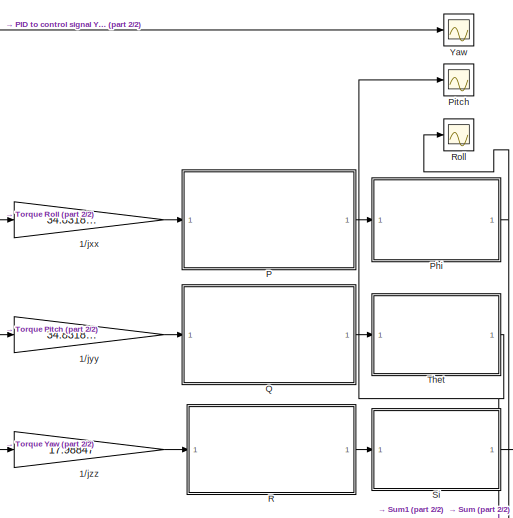
[diagram: root canvas - part 1/2, middle right region]
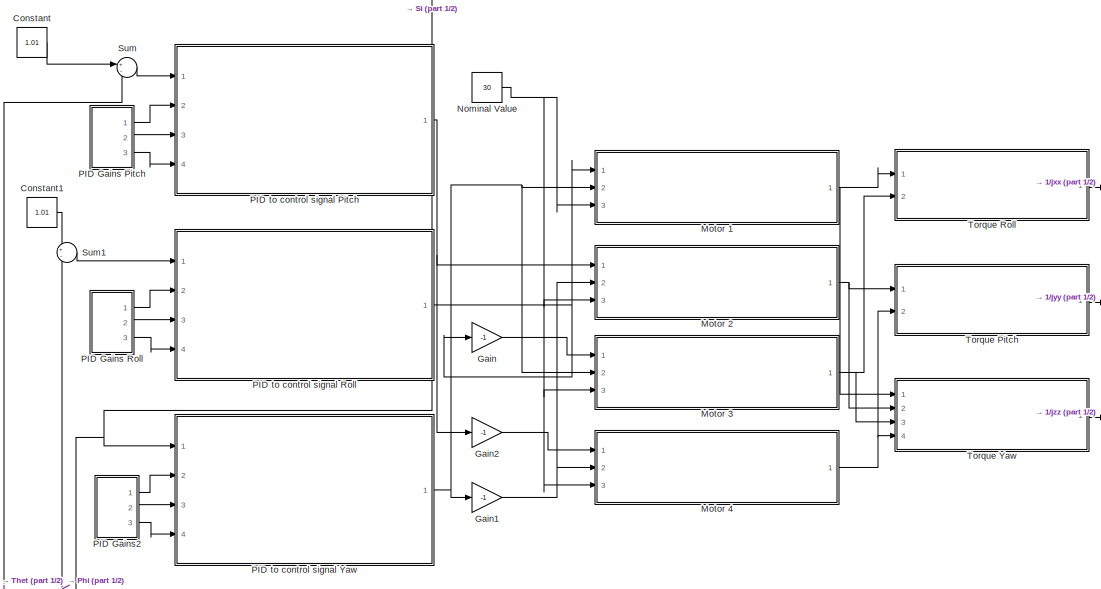
[diagram: root canvas - part 2/2, center side, full height]
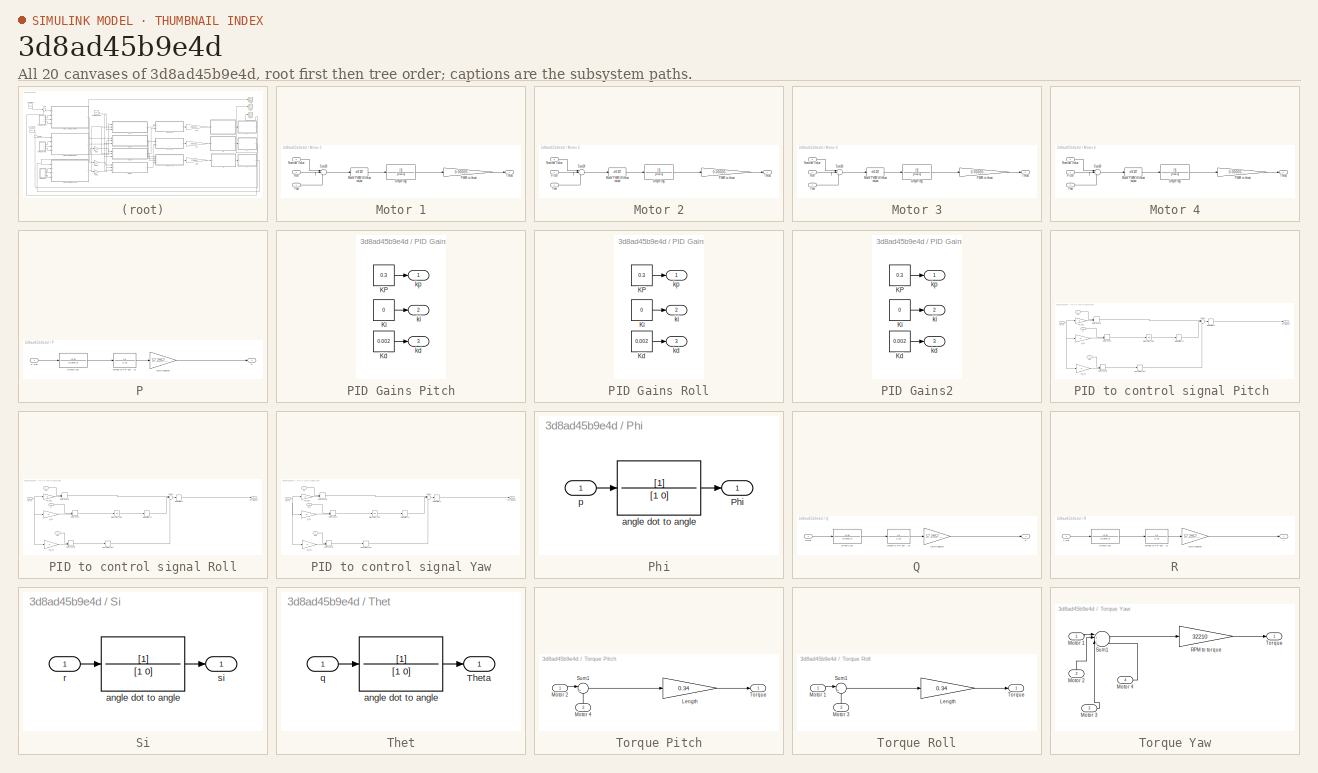
[diagram: thumbnail index - all 20 canvases of the model, root first then tree order]
MODEL slx_3d8ad45b9e4d
KIND model
BLOCK [Gain] 1//jxx
  Gain = 34.8318595
  OutDataTypeStr = Inherit: Inherit via internal rule
  ParamDataTypeStr = Inherit: Inherit via internal rule
  SaturateOnIntegerOverflow = off
BLOCK [Gain] 1//jyy
  Gain = 34.8318595
  OutDataTypeStr = Inherit: Inherit via internal rule
  ParamDataTypeStr = Inherit: Inherit via internal rule
  SaturateOnIntegerOverflow = off
BLOCK [Gain] 1//jzz
  Gain = 17.98847
  OutDataTypeStr = Inherit: Inherit via internal rule
  ParamDataTypeStr = Inherit: Inherit via internal rule
  SaturateOnIntegerOverflow = off
BLOCK [Constant] Constant
  Value = 1.01
BLOCK [Constant] Constant1
  Value = 1.01
BLOCK [Gain] Gain
  Gain = -1
  OutDataTypeStr = Inherit: Inherit via internal rule
  ParamDataTypeStr = Inherit: Inherit via internal rule
  SaturateOnIntegerOverflow = off
BLOCK [Gain] Gain1
  Gain = -1
  OutDataTypeStr = Inherit: Inherit via internal rule
  ParamDataTypeStr = Inherit: Inherit via internal rule
  SaturateOnIntegerOverflow = off
BLOCK [Gain] Gain2
  Gain = -1
  OutDataTypeStr = Inherit: Inherit via internal rule
  ParamDataTypeStr = Inherit: Inherit via internal rule
  SaturateOnIntegerOverflow = off
BLOCK [SubSystem] Motor 1
  Ports = [3, 1]
  RequestExecContextInheritance = off
BLOCK [Fcn] Motor 1/Motor PWM to thrust output
  Expr = u^2.157
BLOCK [Inport] Motor 1/Nominal Value
  IconDisplay = Port number
  Port = 3
BLOCK [Gain] Motor 1/PWM to thrust
  Gain = 0.000055905
  OutDataTypeStr = Inherit: Inherit via internal rule
  ParamDataTypeStr = Inherit: Inherit via internal rule
  SaturateOnIntegerOverflow = off
BLOCK [Inport] Motor 1/Roll
  IconDisplay = Port number
BLOCK [Sum] Motor 1/Sum24
  IconShape = round
  InputSameDT = off
  Inputs = |+-+
  OutDataTypeStr = Inherit: Inherit via internal rule
  Ports = [3, 1]
  SaturateOnIntegerOverflow = off
BLOCK [Outport] Motor 1/Thrust
  IconDisplay = Port number
BLOCK [Inport] Motor 1/Yaw
  IconDisplay = Port number
  Port = 2
BLOCK [TransferFcn] Motor 1/simple lag
  Denominator = [0.12 1]
BLOCK [SubSystem] Motor 2
  Ports = [3, 1]
  RequestExecContextInheritance = off
BLOCK [Fcn] Motor 2/Motor PWM to thrust output
  Expr = u^2.157
BLOCK [Inport] Motor 2/Nominal Value
  IconDisplay = Port number
  Port = 3
BLOCK [Gain] Motor 2/PWM to thrust
  Gain = 0.000055905
  OutDataTypeStr = Inherit: Inherit via internal rule
  ParamDataTypeStr = Inherit: Inherit via internal rule
  SaturateOnIntegerOverflow = off
BLOCK [Inport] Motor 2/Pitch
  IconDisplay = Port number
BLOCK [Sum] Motor 2/Sum24
  IconShape = round
  InputSameDT = off
  Inputs = |+-+
  OutDataTypeStr = Inherit: Inherit via internal rule
  Ports = [3, 1]
  SaturateOnIntegerOverflow = off
BLOCK [Outport] Motor 2/Thrust
  IconDisplay = Port number
BLOCK [Inport] Motor 2/Yaw
  IconDisplay = Port number
  Port = 2
BLOCK [TransferFcn] Motor 2/simple lag
  Denominator = [0.12 1]
BLOCK [SubSystem] Motor 3
  Ports = [3, 1]
  RequestExecContextInheritance = off
BLOCK [Fcn] Motor 3/Motor PWM to thrust output
  Expr = u^2.157
BLOCK [Inport] Motor 3/Nominal Value
  IconDisplay = Port number
  Port = 3
BLOCK [Gain] Motor 3/PWM to thrust
  Gain = 0.000055905
  OutDataTypeStr = Inherit: Inherit via internal rule
  ParamDataTypeStr = Inherit: Inherit via internal rule
  SaturateOnIntegerOverflow = off
BLOCK [Inport] Motor 3/Roll
  IconDisplay = Port number
BLOCK [Sum] Motor 3/Sum24
  IconShape = round
  InputSameDT = off
  Inputs = |+-+
  OutDataTypeStr = Inherit: Inherit via internal rule
  Ports = [3, 1]
  SaturateOnIntegerOverflow = off
BLOCK [Outport] Motor 3/Thrust
  IconDisplay = Port number
BLOCK [Inport] Motor 3/Yaw
  IconDisplay = Port number
  Port = 2
BLOCK [TransferFcn] Motor 3/simple lag
  Denominator = [0.12 1]
BLOCK [SubSystem] Motor 4
  Ports = [3, 1]
  RequestExecContextInheritance = off
BLOCK [Fcn] Motor 4/Motor PWM to thrust output
  Expr = u^2.157
BLOCK [Inport] Motor 4/Nominal Value
  IconDisplay = Port number
  Port = 3
BLOCK [Gain] Motor 4/PWM to thrust
  Gain = 0.000055905
  OutDataTypeStr = Inherit: Inherit via internal rule
  ParamDataTypeStr = Inherit: Inherit via internal rule
  SaturateOnIntegerOverflow = off
BLOCK [Inport] Motor 4/Pitch
  IconDisplay = Port number
BLOCK [Sum] Motor 4/Sum24
  IconShape = round
  InputSameDT = off
  Inputs = |+-+
  OutDataTypeStr = Inherit: Inherit via internal rule
  Ports = [3, 1]
  SaturateOnIntegerOverflow = off
BLOCK [Outport] Motor 4/Thrust
  IconDisplay = Port number
BLOCK [Inport] Motor 4/Yaw
  IconDisplay = Port number
  Port = 2
BLOCK [TransferFcn] Motor 4/simple lag
  Denominator = [0.12 1]
BLOCK [Constant] Nominal Value
  Value = 30
BLOCK [SubSystem] P 
  Ports = [1, 1]
  RequestExecContextInheritance = off
BLOCK [Outport] P /P
  IconDisplay = Port number
BLOCK [Inport] P /P.Dot
  IconDisplay = Port number
BLOCK [Gain] P /rad to degree
  Gain = 57.29577951
  OutDataTypeStr = Inherit: Inherit via internal rule
  ParamDataTypeStr = Inherit: Inherit via internal rule
  SaturateOnIntegerOverflow = off
BLOCK [TransferFcn] P /simple lag
  Denominator = [0.0075 1]
  Numerator = [0.8]
BLOCK [TransferFcn] P /torque to Phi dot - Jx
  Denominator = [1 0]
BLOCK [SubSystem] PID Gains Pitch
  Ports = [0, 3]
  RequestExecContextInheritance = off
BLOCK [Constant] PID Gains Pitch/KP
  Value = 0.3
BLOCK [Constant] PID Gains Pitch/Kd
  Value = 0.002
BLOCK [Constant] PID Gains Pitch/Ki
  Value = 0
BLOCK [Outport] PID Gains Pitch/kd
  IconDisplay = Port number
  Port = 3
BLOCK [Outport] PID Gains Pitch/ki
  IconDisplay = Port number
  Port = 2
BLOCK [Outport] PID Gains Pitch/kp
  IconDisplay = Port number
BLOCK [SubSystem] PID Gains Roll
  Ports = [0, 3]
  RequestExecContextInheritance = off
BLOCK [Constant] PID Gains Roll/KP
  Value = 0.3
BLOCK [Constant] PID Gains Roll/Kd
  Value = 0.002
BLOCK [Constant] PID Gains Roll/Ki
  Value = 0
BLOCK [Outport] PID Gains Roll/kd
  IconDisplay = Port number
  Port = 3
BLOCK [Outport] PID Gains Roll/ki
  IconDisplay = Port number
  Port = 2
BLOCK [Outport] PID Gains Roll/kp
  IconDisplay = Port number
BLOCK [SubSystem] PID Gains2
  Ports = [0, 3]
  RequestExecContextInheritance = off
BLOCK [Constant] PID Gains2/KP
  Value = 0.3
BLOCK [Constant] PID Gains2/Kd
  Value = 0.002
BLOCK [Constant] PID Gains2/Ki
  Value = 0
BLOCK [Outport] PID Gains2/kd
  IconDisplay = Port number
  Port = 3
BLOCK [Outport] PID Gains2/ki
  IconDisplay = Port number
  Port = 2
BLOCK [Outport] PID Gains2/kp
  IconDisplay = Port number
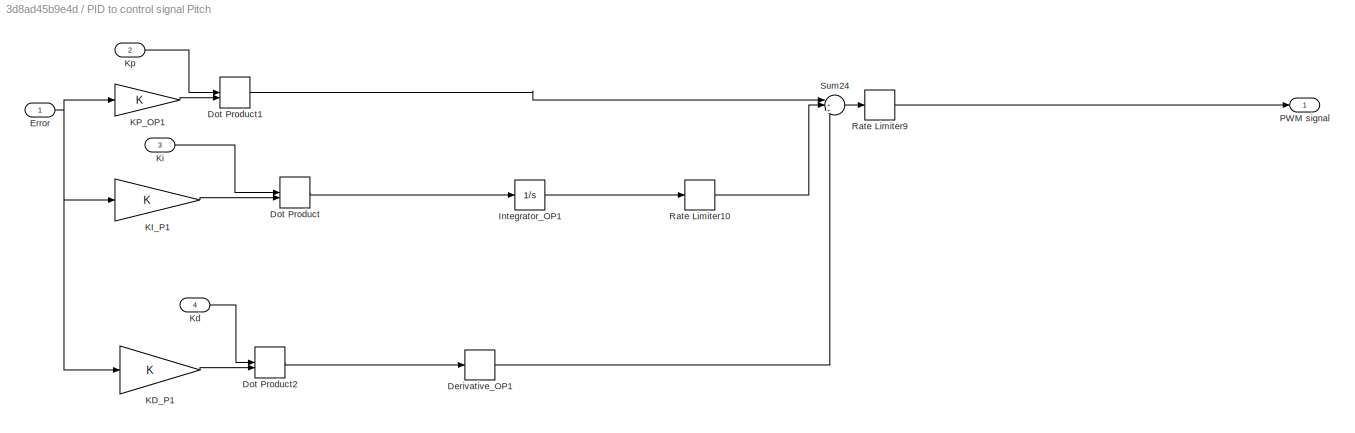
BLOCK [SubSystem] PID to control signal Pitch 
  Ports = [4, 1]
  RequestExecContextInheritance = off
BLOCK [Derivative] PID to control signal Pitch /Derivative_OP1
BLOCK [DotProduct] PID to control signal Pitch /Dot Product
  OutDataTypeStr = Inherit: Inherit via internal rule
BLOCK [DotProduct] PID to control signal Pitch /Dot Product1
  OutDataTypeStr = Inherit: Inherit via internal rule
BLOCK [DotProduct] PID to control signal Pitch /Dot Product2
  OutDataTypeStr = Inherit: Inherit via internal rule
BLOCK [Inport] PID to control signal Pitch /Error
  IconDisplay = Port number
BLOCK [Integrator] PID to control signal Pitch /Integrator_OP1
  Ports = [1, 1]
BLOCK [Gain] PID to control signal Pitch /KD_P1
  OutDataTypeStr = Inherit: Inherit via internal rule
  ParamDataTypeStr = Inherit: Inherit via internal rule
  SaturateOnIntegerOverflow = off
BLOCK [Gain] PID to control signal Pitch /KI_P1
  OutDataTypeStr = Inherit: Inherit via internal rule
  ParamDataTypeStr = Inherit: Inherit via internal rule
  SaturateOnIntegerOverflow = off
BLOCK [Gain] PID to control signal Pitch /KP_OP1
  OutDataTypeStr = Inherit: Inherit via internal rule
  ParamDataTypeStr = Inherit: Inherit via internal rule
  SaturateOnIntegerOverflow = off
BLOCK [Inport] PID to control signal Pitch /Kd
  IconDisplay = Port number
  Port = 4
BLOCK [Inport] PID to control signal Pitch /Ki
  IconDisplay = Port number
  Port = 3
BLOCK [Inport] PID to control signal Pitch /Kp
  IconDisplay = Port number
  Port = 2
BLOCK [Outport] PID to control signal Pitch /PWM signal 
  IconDisplay = Port number
BLOCK [RateLimiter] PID to control signal Pitch /Rate Limiter10
  FallingSlewLimit = -399
  RisingSlewLimit = 399
  SampleTimeMode = inherited
BLOCK [RateLimiter] PID to control signal Pitch /Rate Limiter9
  FallingSlewLimit = -551
  RisingSlewLimit = 551
  SampleTimeMode = inherited
BLOCK [Sum] PID to control signal Pitch /Sum24
  IconShape = round
  InputSameDT = off
  Inputs = |+++
  OutDataTypeStr = Inherit: Inherit via internal rule
  Ports = [3, 1]
  SaturateOnIntegerOverflow = off
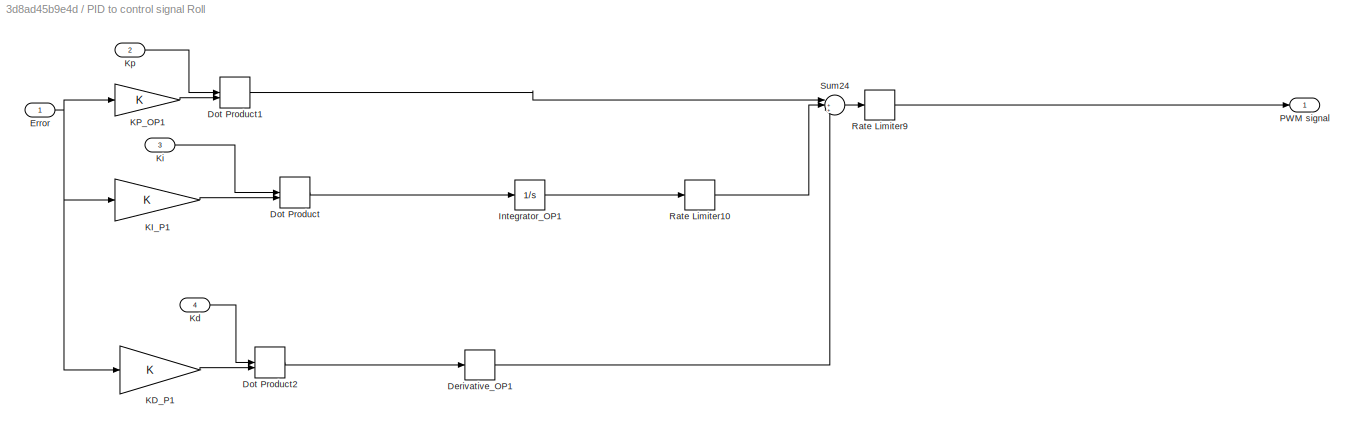
BLOCK [SubSystem] PID to control signal Roll
  Ports = [4, 1]
  RequestExecContextInheritance = off
BLOCK [Derivative] PID to control signal Roll/Derivative_OP1
BLOCK [DotProduct] PID to control signal Roll/Dot Product
  OutDataTypeStr = Inherit: Inherit via internal rule
BLOCK [DotProduct] PID to control signal Roll/Dot Product1
  OutDataTypeStr = Inherit: Inherit via internal rule
BLOCK [DotProduct] PID to control signal Roll/Dot Product2
  OutDataTypeStr = Inherit: Inherit via internal rule
BLOCK [Inport] PID to control signal Roll/Error
  IconDisplay = Port number
BLOCK [Integrator] PID to control signal Roll/Integrator_OP1
  Ports = [1, 1]
BLOCK [Gain] PID to control signal Roll/KD_P1
  OutDataTypeStr = Inherit: Inherit via internal rule
  ParamDataTypeStr = Inherit: Inherit via internal rule
  SaturateOnIntegerOverflow = off
BLOCK [Gain] PID to control signal Roll/KI_P1
  OutDataTypeStr = Inherit: Inherit via internal rule
  ParamDataTypeStr = Inherit: Inherit via internal rule
  SaturateOnIntegerOverflow = off
BLOCK [Gain] PID to control signal Roll/KP_OP1
  OutDataTypeStr = Inherit: Inherit via internal rule
  ParamDataTypeStr = Inherit: Inherit via internal rule
  SaturateOnIntegerOverflow = off
BLOCK [Inport] PID to control signal Roll/Kd
  IconDisplay = Port number
  Port = 4
BLOCK [Inport] PID to control signal Roll/Ki
  IconDisplay = Port number
  Port = 3
BLOCK [Inport] PID to control signal Roll/Kp
  IconDisplay = Port number
  Port = 2
BLOCK [Outport] PID to control signal Roll/PWM signal 
  IconDisplay = Port number
BLOCK [RateLimiter] PID to control signal Roll/Rate Limiter10
  FallingSlewLimit = -399
  RisingSlewLimit = 399
  SampleTimeMode = inherited
BLOCK [RateLimiter] PID to control signal Roll/Rate Limiter9
  FallingSlewLimit = -551
  RisingSlewLimit = 551
  SampleTimeMode = inherited
BLOCK [Sum] PID to control signal Roll/Sum24
  IconShape = round
  InputSameDT = off
  Inputs = |+++
  OutDataTypeStr = Inherit: Inherit via internal rule
  Ports = [3, 1]
  SaturateOnIntegerOverflow = off
BLOCK [SubSystem] PID to control signal Yaw
  Ports = [4, 1]
  RequestExecContextInheritance = off
BLOCK [Derivative] PID to control signal Yaw/Derivative_OP1
BLOCK [DotProduct] PID to control signal Yaw/Dot Product
  OutDataTypeStr = Inherit: Inherit via internal rule
BLOCK [DotProduct] PID to control signal Yaw/Dot Product1
  OutDataTypeStr = Inherit: Inherit via internal rule
BLOCK [DotProduct] PID to control signal Yaw/Dot Product2
  OutDataTypeStr = Inherit: Inherit via internal rule
BLOCK [Inport] PID to control signal Yaw/Error
  IconDisplay = Port number
BLOCK [Integrator] PID to control signal Yaw/Integrator_OP1
  Ports = [1, 1]
BLOCK [Gain] PID to control signal Yaw/KD_P1
  OutDataTypeStr = Inherit: Inherit via internal rule
  ParamDataTypeStr = Inherit: Inherit via internal rule
  SaturateOnIntegerOverflow = off
BLOCK [Gain] PID to control signal Yaw/KI_P1
  OutDataTypeStr = Inherit: Inherit via internal rule
  ParamDataTypeStr = Inherit: Inherit via internal rule
  SaturateOnIntegerOverflow = off
BLOCK [Gain] PID to control signal Yaw/KP_OP1
  OutDataTypeStr = Inherit: Inherit via internal rule
  ParamDataTypeStr = Inherit: Inherit via internal rule
  SaturateOnIntegerOverflow = off
BLOCK [Inport] PID to control signal Yaw/Kp
  IconDisplay = Port number
  Port = 2
BLOCK [Inport] PID to control signal Yaw/Kp1
  IconDisplay = Port number
  Port = 3
BLOCK [Inport] PID to control signal Yaw/Kp2
  IconDisplay = Port number
  Port = 4
BLOCK [Outport] PID to control signal Yaw/PWM signal 
  IconDisplay = Port number
BLOCK [RateLimiter] PID to control signal Yaw/Rate Limiter10
  FallingSlewLimit = -399
  RisingSlewLimit = 399
  SampleTimeMode = inherited
BLOCK [RateLimiter] PID to control signal Yaw/Rate Limiter9
  FallingSlewLimit = -551
  RisingSlewLimit = 551
  SampleTimeMode = inherited
BLOCK [Sum] PID to control signal Yaw/Sum24
  IconShape = round
  InputSameDT = off
  Inputs = |+++
  OutDataTypeStr = Inherit: Inherit via internal rule
  Ports = [3, 1]
  SaturateOnIntegerOverflow = off
BLOCK [SubSystem] Phi
  Ports = [1, 1]
  RequestExecContextInheritance = off
BLOCK [Outport] Phi/Phi
  IconDisplay = Port number
BLOCK [TransferFcn] Phi/angle dot to angle
  Denominator = [1 0]
BLOCK [Inport] Phi/p
  IconDisplay = Port number
BLOCK [Scope] Pitch
  Floating = off
  NumInputPorts = 1
  Ports = [1]
  SaveName = ScopeData1
  ShowLegends = off
BLOCK [SubSystem] Q
  Ports = [1, 1]
  RequestExecContextInheritance = off
BLOCK [Outport] Q/q
  IconDisplay = Port number
BLOCK [Inport] Q/q.Dot
  IconDisplay = Port number
BLOCK [Gain] Q/rad to degree
  Gain = 57.29577951
  OutDataTypeStr = Inherit: Inherit via internal rule
  ParamDataTypeStr = Inherit: Inherit via internal rule
  SaturateOnIntegerOverflow = off
BLOCK [TransferFcn] Q/simple lag
  Denominator = [0.0075 1]
  Numerator = [0.8]
BLOCK [TransferFcn] Q/torque to Phi dot - Jx
  Denominator = [1 0]
BLOCK [SubSystem] R
  Ports = [1, 1]
  RequestExecContextInheritance = off
BLOCK [Outport] R/r
  IconDisplay = Port number
BLOCK [Inport] R/r.Dot
  IconDisplay = Port number
BLOCK [Gain] R/rad to degree
  Gain = 57.29577951
  OutDataTypeStr = Inherit: Inherit via internal rule
  ParamDataTypeStr = Inherit: Inherit via internal rule
  SaturateOnIntegerOverflow = off
BLOCK [TransferFcn] R/simple lag
  Denominator = [0.0075 1]
  Numerator = [0.8]
BLOCK [TransferFcn] R/torque to Phi dot - Jx
  Denominator = [1 0]
BLOCK [Scope] Roll
  Floating = off
  NumInputPorts = 1
  Ports = [1]
  ShowLegends = off
BLOCK [SubSystem] Si
  Ports = [1, 1]
  RequestExecContextInheritance = off
BLOCK [TransferFcn] Si/angle dot to angle
  Denominator = [1 0]
BLOCK [Inport] Si/r
  IconDisplay = Port number
BLOCK [Outport] Si/si
  IconDisplay = Port number
BLOCK [Sum] Sum
  IconShape = round
  InputSameDT = off
  Inputs = +-
  OutDataTypeStr = Inherit: Inherit via internal rule
  Ports = [2, 1]
  SaturateOnIntegerOverflow = off
BLOCK [Sum] Sum1
  IconShape = round
  InputSameDT = off
  Inputs = +-
  OutDataTypeStr = Inherit: Inherit via internal rule
  Ports = [2, 1]
  SaturateOnIntegerOverflow = off
BLOCK [SubSystem] Thet
  Ports = [1, 1]
  RequestExecContextInheritance = off
BLOCK [Outport] Thet/Theta
  IconDisplay = Port number
BLOCK [TransferFcn] Thet/angle dot to angle
  Denominator = [1 0]
BLOCK [Inport] Thet/q
  IconDisplay = Port number
BLOCK [SubSystem] Torque Pitch
  Ports = [2, 1]
  RequestExecContextInheritance = off
BLOCK [Gain] Torque Pitch/Length
  Gain = 0.34
  OutDataTypeStr = Inherit: Inherit via internal rule
  ParamDataTypeStr = Inherit: Inherit via internal rule
  SaturateOnIntegerOverflow = off
BLOCK [Inport] Torque Pitch/Motor 2
  IconDisplay = Port number
BLOCK [Inport] Torque Pitch/Motor 4
  IconDisplay = Port number
  Port = 2
BLOCK [Sum] Torque Pitch/Sum1
  IconShape = round
  InputSameDT = off
  Inputs = |+-
  OutDataTypeStr = Inherit: Inherit via internal rule
  Ports = [2, 1]
  SaturateOnIntegerOverflow = off
BLOCK [Outport] Torque Pitch/Torque
  IconDisplay = Port number
BLOCK [SubSystem] Torque Roll
  Ports = [2, 1]
  RequestExecContextInheritance = off
BLOCK [Gain] Torque Roll/Length
  Gain = 0.34
  OutDataTypeStr = Inherit: Inherit via internal rule
  ParamDataTypeStr = Inherit: Inherit via internal rule
  SaturateOnIntegerOverflow = off
BLOCK [Inport] Torque Roll/Motor 1
  IconDisplay = Port number
BLOCK [Inport] Torque Roll/Motor 3
  IconDisplay = Port number
  Port = 2
BLOCK [Sum] Torque Roll/Sum1
  IconShape = round
  InputSameDT = off
  Inputs = |+-
  OutDataTypeStr = Inherit: Inherit via internal rule
  Ports = [2, 1]
  SaturateOnIntegerOverflow = off
BLOCK [Outport] Torque Roll/Torque
  IconDisplay = Port number
BLOCK [SubSystem] Torque Yaw
  Ports = [4, 1]
  RequestExecContextInheritance = off
BLOCK [Inport] Torque Yaw/Motor 1
  IconDisplay = Port number
BLOCK [Inport] Torque Yaw/Motor 2 
  IconDisplay = Port number
  Port = 2
BLOCK [Inport] Torque Yaw/Motor 3
  IconDisplay = Port number
  Port = 3
BLOCK [Inport] Torque Yaw/Motor 4
  IconDisplay = Port number
  Port = 4
BLOCK [Gain] Torque Yaw/RPM to torque 
  Gain = 32210
  OutDataTypeStr = Inherit: Inherit via internal rule
  ParamDataTypeStr = Inherit: Inherit via internal rule
  SaturateOnIntegerOverflow = off
BLOCK [Sum] Torque Yaw/Sum1
  IconShape = round
  InputSameDT = off
  Inputs = |+-+-
  OutDataTypeStr = Inherit: Inherit via internal rule
  Ports = [4, 1]
  SaturateOnIntegerOverflow = off
BLOCK [Outport] Torque Yaw/Torque
  IconDisplay = Port number
BLOCK [Scope] Yaw
  Floating = off
  NumInputPorts = 1
  Ports = [1]
  SaveName = ScopeData2
  ShowLegends = off
LINE 1//jxx:1 -> P :1
LINE 1//jyy:1 -> Q:1
LINE 1//jzz:1 -> R:1
LINE Constant1:1 -> Sum1:1
LINE Constant:1 -> Sum:1
NET Gain1:1 -> Motor 2:2, Motor 4:2
LINE Gain2:1 -> Motor 4:1
LINE Gain:1 -> Motor 3:1
LINE Motor 1/Motor PWM to thrust output:1 -> Motor 1/simple lag:1
LINE Motor 1/Nominal Value:1 -> Motor 1/Sum24:1
LINE Motor 1/PWM to thrust:1 -> Motor 1/Thrust:1
LINE Motor 1/Roll:1 -> Motor 1/Sum24:2
LINE Motor 1/Sum24:1 -> Motor 1/Motor PWM to thrust output:1
LINE Motor 1/Yaw:1 -> Motor 1/Sum24:3
LINE Motor 1/simple lag:1 -> Motor 1/PWM to thrust:1
NET Motor 1:1 -> Torque Roll:1, Torque Yaw:1
LINE Motor 2/Motor PWM to thrust output:1 -> Motor 2/simple lag:1
LINE Motor 2/Nominal Value:1 -> Motor 2/Sum24:1
LINE Motor 2/PWM to thrust:1 -> Motor 2/Thrust:1
LINE Motor 2/Pitch:1 -> Motor 2/Sum24:2
LINE Motor 2/Sum24:1 -> Motor 2/Motor PWM to thrust output:1
LINE Motor 2/Yaw:1 -> Motor 2/Sum24:3
LINE Motor 2/simple lag:1 -> Motor 2/PWM to thrust:1
NET Motor 2:1 -> Torque Pitch:1, Torque Yaw:2
LINE Motor 3/Motor PWM to thrust output:1 -> Motor 3/simple lag:1
LINE Motor 3/Nominal Value:1 -> Motor 3/Sum24:1
LINE Motor 3/PWM to thrust:1 -> Motor 3/Thrust:1
LINE Motor 3/Roll:1 -> Motor 3/Sum24:2
LINE Motor 3/Sum24:1 -> Motor 3/Motor PWM to thrust output:1
LINE Motor 3/Yaw:1 -> Motor 3/Sum24:3
LINE Motor 3/simple lag:1 -> Motor 3/PWM to thrust:1
NET Motor 3:1 -> Torque Roll:2, Torque Yaw:3
LINE Motor 4/Motor PWM to thrust output:1 -> Motor 4/simple lag:1
LINE Motor 4/Nominal Value:1 -> Motor 4/Sum24:1
LINE Motor 4/PWM to thrust:1 -> Motor 4/Thrust:1
LINE Motor 4/Pitch:1 -> Motor 4/Sum24:2
LINE Motor 4/Sum24:1 -> Motor 4/Motor PWM to thrust output:1
LINE Motor 4/Yaw:1 -> Motor 4/Sum24:3
LINE Motor 4/simple lag:1 -> Motor 4/PWM to thrust:1
NET Motor 4:1 -> Torque Pitch:2, Torque Yaw:4
NET Nominal Value:1 -> Motor 1:3, Motor 2:3, Motor 3:3, Motor 4:3
LINE P /P.Dot:1 -> P /simple lag:1
LINE P /rad to degree:1 -> P /P:1
LINE P /simple lag:1 -> P /torque to Phi dot - Jx:1
LINE P /torque to Phi dot - Jx:1 -> P /rad to degree:1
LINE P :1 -> Phi:1
LINE PID Gains Pitch/KP:1 -> PID Gains Pitch/kp:1
LINE PID Gains Pitch/Kd:1 -> PID Gains Pitch/kd:1
LINE PID Gains Pitch/Ki:1 -> PID Gains Pitch/ki:1
LINE PID Gains Pitch:1 -> PID to control signal Pitch :2
LINE PID Gains Pitch:2 -> PID to control signal Pitch :3
LINE PID Gains Pitch:3 -> PID to control signal Pitch :4
LINE PID Gains Roll/KP:1 -> PID Gains Roll/kp:1
LINE PID Gains Roll/Kd:1 -> PID Gains Roll/kd:1
LINE PID Gains Roll/Ki:1 -> PID Gains Roll/ki:1
LINE PID Gains Roll:1 -> PID to control signal Roll:2
LINE PID Gains Roll:2 -> PID to control signal Roll:3
LINE PID Gains Roll:3 -> PID to control signal Roll:4
LINE PID Gains2/KP:1 -> PID Gains2/kp:1
LINE PID Gains2/Kd:1 -> PID Gains2/kd:1
LINE PID Gains2/Ki:1 -> PID Gains2/ki:1
LINE PID Gains2:1 -> PID to control signal Yaw:2
LINE PID Gains2:2 -> PID to control signal Yaw:3
LINE PID Gains2:3 -> PID to control signal Yaw:4
LINE PID to control signal Pitch /Derivative_OP1:1 -> PID to control signal Pitch /Sum24:3
LINE PID to control signal Pitch /Dot Product1:1 -> PID to control signal Pitch /Sum24:1
LINE PID to control signal Pitch /Dot Product2:1 -> PID to control signal Pitch /Derivative_OP1:1
LINE PID to control signal Pitch /Dot Product:1 -> PID to control signal Pitch /Integrator_OP1:1
NET PID to control signal Pitch /Error:1 -> PID to control signal Pitch /KD_P1:1, PID to control signal Pitch /KI_P1:1, PID to control signal Pitch /KP_OP1:1
LINE PID to control signal Pitch /Integrator_OP1:1 -> PID to control signal Pitch /Rate Limiter10:1
LINE PID to control signal Pitch /KD_P1:1 -> PID to control signal Pitch /Dot Product2:2
LINE PID to control signal Pitch /KI_P1:1 -> PID to control signal Pitch /Dot Product:2
LINE PID to control signal Pitch /KP_OP1:1 -> PID to control signal Pitch /Dot Product1:2
LINE PID to control signal Pitch /Kd:1 -> PID to control signal Pitch /Dot Product2:1
LINE PID to control signal Pitch /Ki:1 -> PID to control signal Pitch /Dot Product:1
LINE PID to control signal Pitch /Kp:1 -> PID to control signal Pitch /Dot Product1:1
LINE PID to control signal Pitch /Rate Limiter10:1 -> PID to control signal Pitch /Sum24:2
LINE PID to control signal Pitch /Rate Limiter9:1 -> PID to control signal Pitch /PWM signal :1
LINE PID to control signal Pitch /Sum24:1 -> PID to control signal Pitch /Rate Limiter9:1
NET PID to control signal Pitch :1 -> Gain2:1, Motor 2:1
LINE PID to control signal Roll/Derivative_OP1:1 -> PID to control signal Roll/Sum24:3
LINE PID to control signal Roll/Dot Product1:1 -> PID to control signal Roll/Sum24:1
LINE PID to control signal Roll/Dot Product2:1 -> PID to control signal Roll/Derivative_OP1:1
LINE PID to control signal Roll/Dot Product:1 -> PID to control signal Roll/Integrator_OP1:1
NET PID to control signal Roll/Error:1 -> PID to control signal Roll/KD_P1:1, PID to control signal Roll/KI_P1:1, PID to control signal Roll/KP_OP1:1
LINE PID to control signal Roll/Integrator_OP1:1 -> PID to control signal Roll/Rate Limiter10:1
LINE PID to control signal Roll/KD_P1:1 -> PID to control signal Roll/Dot Product2:2
LINE PID to control signal Roll/KI_P1:1 -> PID to control signal Roll/Dot Product:2
LINE PID to control signal Roll/KP_OP1:1 -> PID to control signal Roll/Dot Product1:2
LINE PID to control signal Roll/Kd:1 -> PID to control signal Roll/Dot Product2:1
LINE PID to control signal Roll/Ki:1 -> PID to control signal Roll/Dot Product:1
LINE PID to control signal Roll/Kp:1 -> PID to control signal Roll/Dot Product1:1
LINE PID to control signal Roll/Rate Limiter10:1 -> PID to control signal Roll/Sum24:2
LINE PID to control signal Roll/Rate Limiter9:1 -> PID to control signal Roll/PWM signal :1
LINE PID to control signal Roll/Sum24:1 -> PID to control signal Roll/Rate Limiter9:1
NET PID to control signal Roll:1 -> Gain:1, Motor 1:1
LINE PID to control signal Yaw/Derivative_OP1:1 -> PID to control signal Yaw/Sum24:3
LINE PID to control signal Yaw/Dot Product1:1 -> PID to control signal Yaw/Sum24:1
LINE PID to control signal Yaw/Dot Product2:1 -> PID to control signal Yaw/Derivative_OP1:1
LINE PID to control signal Yaw/Dot Product:1 -> PID to control signal Yaw/Integrator_OP1:1
NET PID to control signal Yaw/Error:1 -> PID to control signal Yaw/KD_P1:1, PID to control signal Yaw/KI_P1:1, PID to control signal Yaw/KP_OP1:1
LINE PID to control signal Yaw/Integrator_OP1:1 -> PID to control signal Yaw/Rate Limiter10:1
LINE PID to control signal Yaw/KD_P1:1 -> PID to control signal Yaw/Dot Product2:2
LINE PID to control signal Yaw/KI_P1:1 -> PID to control signal Yaw/Dot Product:2
LINE PID to control signal Yaw/KP_OP1:1 -> PID to control signal Yaw/Dot Product1:2
LINE PID to control signal Yaw/Kp1:1 -> PID to control signal Yaw/Dot Product:1
LINE PID to control signal Yaw/Kp2:1 -> PID to control signal Yaw/Dot Product2:1
LINE PID to control signal Yaw/Kp:1 -> PID to control signal Yaw/Dot Product1:1
LINE PID to control signal Yaw/Rate Limiter10:1 -> PID to control signal Yaw/Sum24:2
LINE PID to control signal Yaw/Rate Limiter9:1 -> PID to control signal Yaw/PWM signal :1
LINE PID to control signal Yaw/Sum24:1 -> PID to control signal Yaw/Rate Limiter9:1
NET PID to control signal Yaw:1 -> Gain1:1, Motor 1:2, Motor 3:2
LINE Phi/angle dot to angle:1 -> Phi/Phi:1
LINE Phi/p:1 -> Phi/angle dot to angle:1
NET Phi:1 -> Roll:1, Sum1:2
LINE Q/q.Dot:1 -> Q/simple lag:1
LINE Q/rad to degree:1 -> Q/q:1
LINE Q/simple lag:1 -> Q/torque to Phi dot - Jx:1
LINE Q/torque to Phi dot - Jx:1 -> Q/rad to degree:1
LINE Q:1 -> Thet:1
LINE R/r.Dot:1 -> R/simple lag:1
LINE R/rad to degree:1 -> R/r:1
LINE R/simple lag:1 -> R/torque to Phi dot - Jx:1
LINE R/torque to Phi dot - Jx:1 -> R/rad to degree:1
LINE R:1 -> Si:1
LINE Si/angle dot to angle:1 -> Si/si:1
LINE Si/r:1 -> Si/angle dot to angle:1
NET Si:1 -> PID to control signal Yaw:1, Yaw:1
LINE Sum1:1 -> PID to control signal Roll:1
LINE Sum:1 -> PID to control signal Pitch :1
LINE Thet/angle dot to angle:1 -> Thet/Theta:1
LINE Thet/q:1 -> Thet/angle dot to angle:1
NET Thet:1 -> Pitch:1, Sum:2
LINE Torque Pitch/Length:1 -> Torque Pitch/Torque:1
LINE Torque Pitch/Motor 2:1 -> Torque Pitch/Sum1:1
LINE Torque Pitch/Motor 4:1 -> Torque Pitch/Sum1:2
LINE Torque Pitch/Sum1:1 -> Torque Pitch/Length:1
LINE Torque Pitch:1 -> 1//jyy:1
LINE Torque Roll/Length:1 -> Torque Roll/Torque:1
LINE Torque Roll/Motor 1:1 -> Torque Roll/Sum1:1
LINE Torque Roll/Motor 3:1 -> Torque Roll/Sum1:2
LINE Torque Roll/Sum1:1 -> Torque Roll/Length:1
LINE Torque Roll:1 -> 1//jxx:1
LINE Torque Yaw/Motor 1:1 -> Torque Yaw/Sum1:1
LINE Torque Yaw/Motor 2 :1 -> Torque Yaw/Sum1:2
LINE Torque Yaw/Motor 3:1 -> Torque Yaw/Sum1:3
LINE Torque Yaw/Motor 4:1 -> Torque Yaw/Sum1:4
LINE Torque Yaw/RPM to torque :1 -> Torque Yaw/Torque:1
LINE Torque Yaw/Sum1:1 -> Torque Yaw/RPM to torque :1
LINE Torque Yaw:1 -> 1//jzz:1
note: NET lines group one-source signal fan-out (src -> all destinations, sorted); 1:1 wires keep LINE
